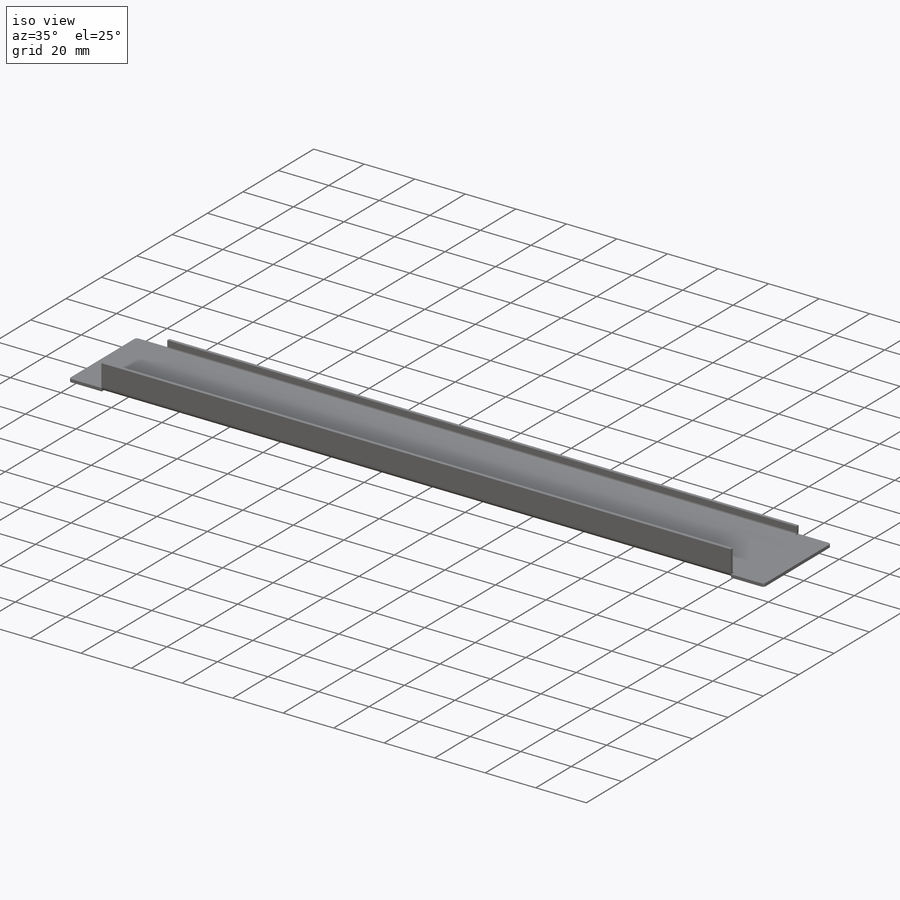
[diagram: iso view]
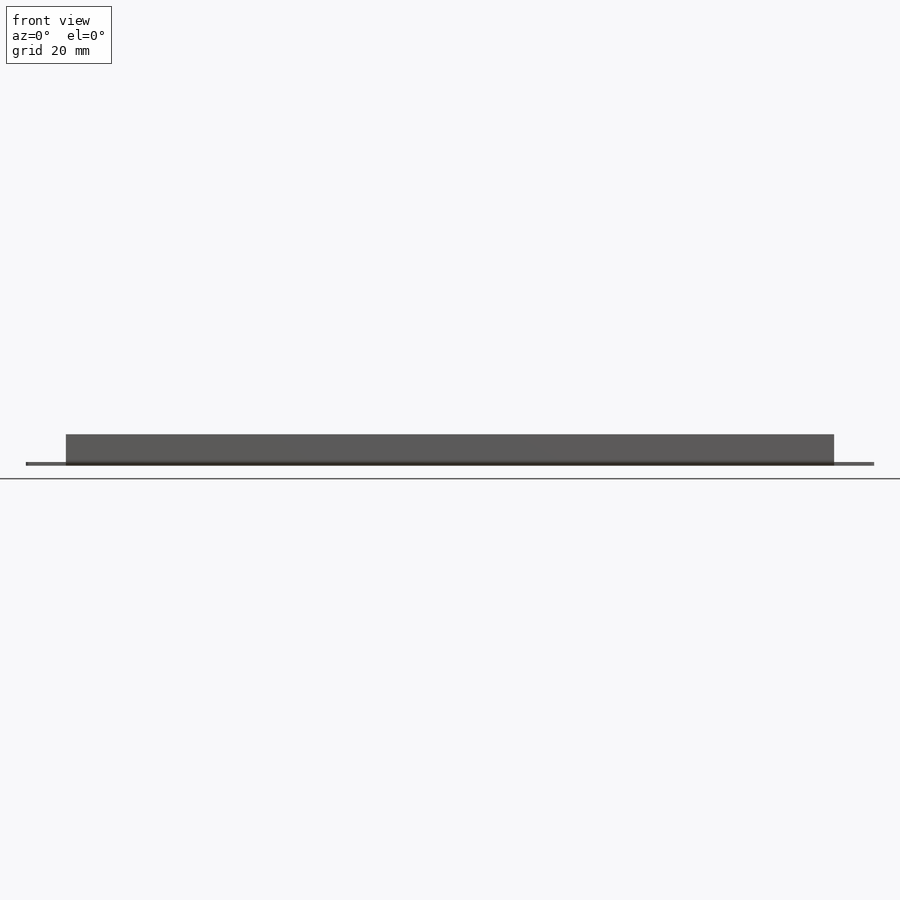
[diagram: front view]
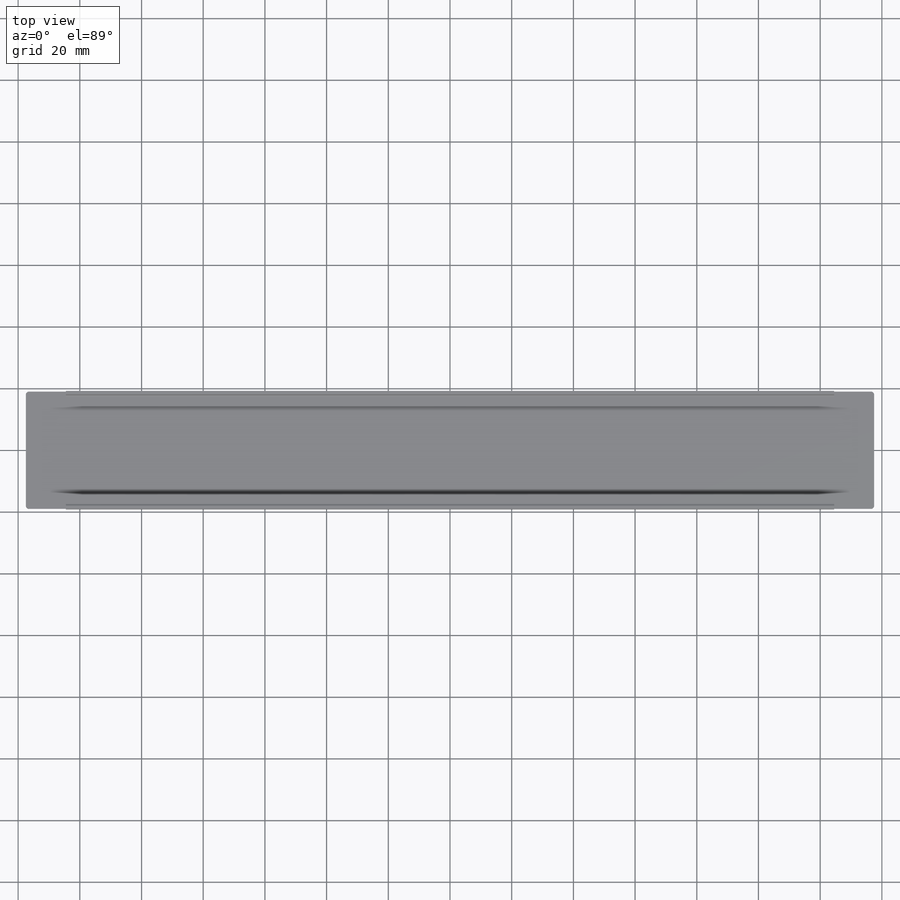
[diagram: top view]
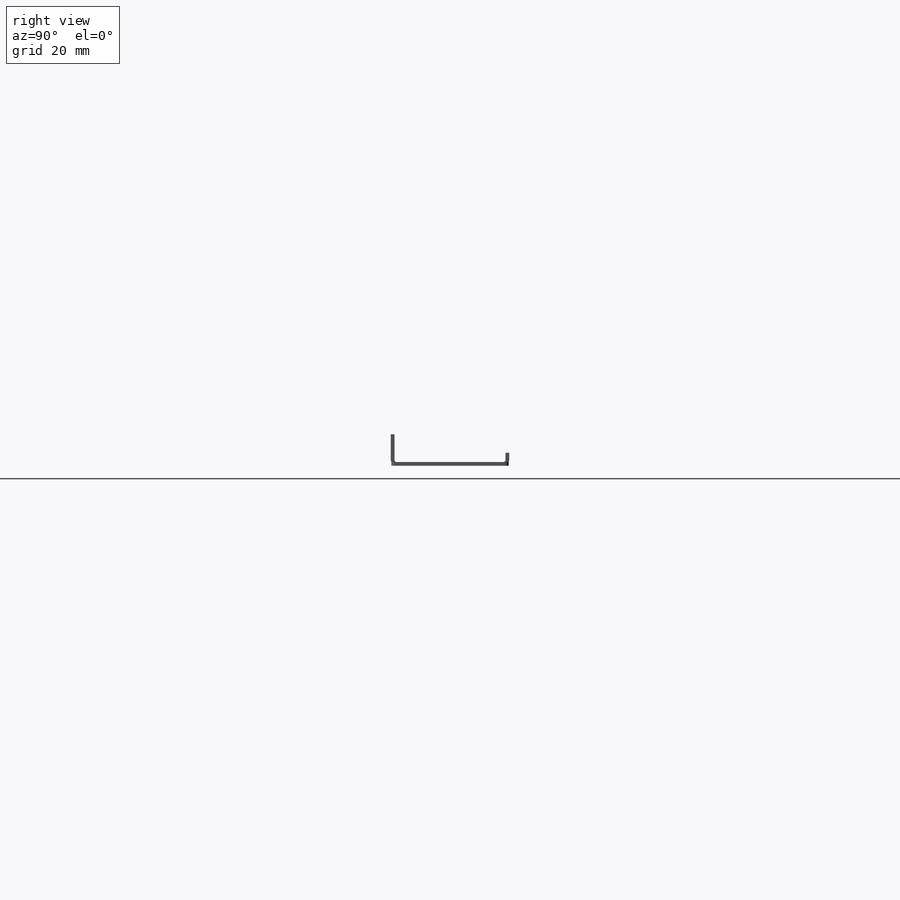
[diagram: right view]
SOLIDWORKS PART (.sldprt)
format: sldprt  version: not decoded by parser v0  size: 238,080 bytes
history: native  units: mm
features: sketch x4, plane x3, sheet_metal_op x3, fillet x2, material x1, cut_extrude x1, extrude x1 + 1 further entry (+9 scaffold rows collapsed)
feature tree (25):
  scaffold x9  (default folders/planes/origin — collapsed)
  material  "Liga 7079"
  plane  "Plano frontal"
  plane  "Plano superior"
  plane  "Plano direito"
  sketch  "Esboço1"  dims[D1=36.0mm D2=3.0mm D3=9.0mm]
  sheet_metal_op  "Chapa metálica2"
  sheet_metal_op  "Flange-base2"
  sheet_metal_op  "DobradeBase6"
  sketch  "Esboço4"  dims[D2=13.0mm D3=13.0mm D1=0.0mm]
  cut_extrude  "Corte-extrusão3"  [1 undecoded]
  sketch  "Esboço12"  dims[D1=0.0mm D2=0.0mm]
  extrude  "Ressalto-extrusão1"  Depth=38mm
  fillet  "Filete1"  Radius=1mm
  "Padrão-Plano2"
  sketch  "Curva-Linhas2"
  fillet  "Planificar-<DobradeBase6>1"  [1 undecoded]
decode coverage: 5 of 11 modeling features carry decoded parameters; 1 rows unclassified (native names shown)
note: 2 parameter values undecoded
note: suppression state not decoded; provenance and decode notes live in map.json
